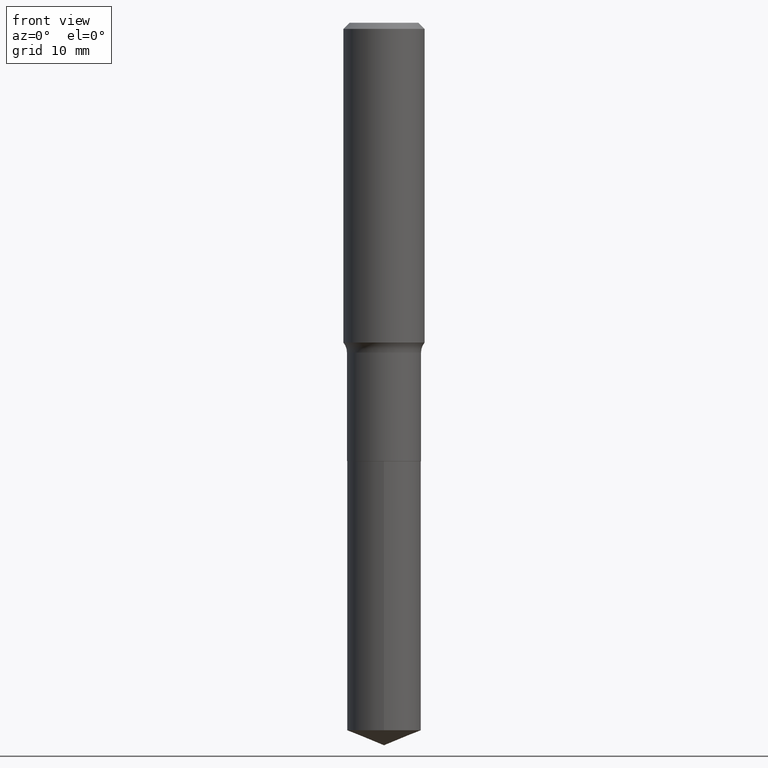
[diagram: clean part render]
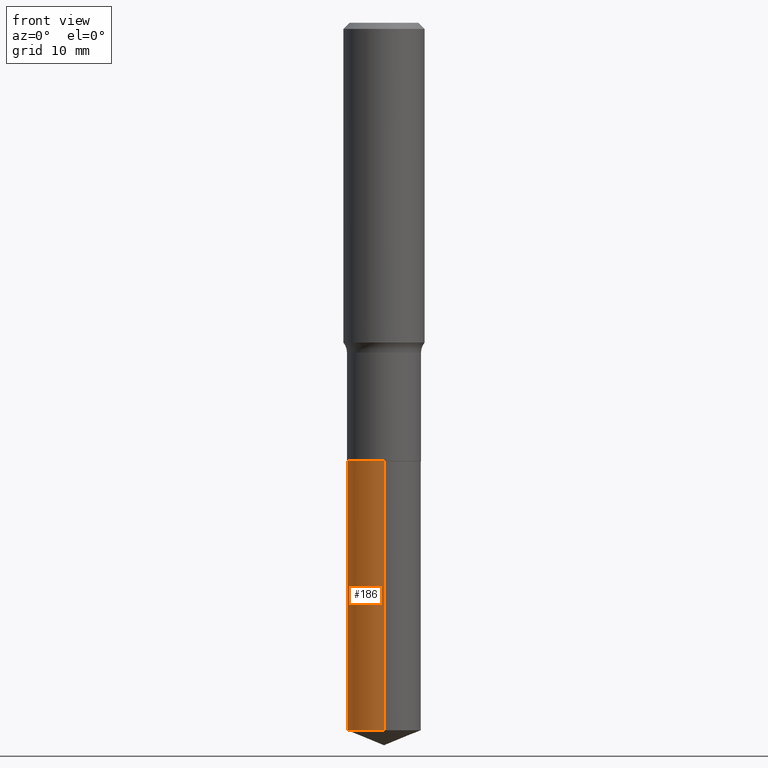
[diagram: same view with one face highlighted and labeled with its STEP entity id]
A machine part, front view. The second image highlights one B-rep face of the part: STEP entity #186.
In plain terms, the highlighted cylindrical surface (partial cylindrical patch) has radius 4.5644 mm, axis along (-0, 0, 1).
Its self-contained STEP definition (entity closure, byte-faithful):
#6 = DIRECTION ( 'NONE',  ( -2.445510554620705079E-29, 3.491421552707238058E-15, 1.000000000000000000 ) ) ;
#13 = EDGE_CURVE ( 'NONE', #434, #166, #482, .T. ) ;
#40 = EDGE_CURVE ( 'NONE', #434, #133, #105, .T. ) ;
#97 = EDGE_CURVE ( 'NONE', #133, #382, #266, .T. ) ;
#101 = CYLINDRICAL_SURFACE ( 'NONE', #358, 0.1796999999999999986 ) ;
#105 = CIRCLE ( 'NONE', #360, 0.1796999999999999986 ) ;
#131 = ORIENTED_EDGE ( 'NONE', *, *, #40, .T. ) ;
#133 = VERTEX_POINT ( 'NONE', #299 ) ;
#139 = CARTESIAN_POINT ( 'NONE',  ( 1.276845296160951695E-15, 0.1796999999999925879, -2.125900000000000567 ) ) ;
#141 = CIRCLE ( 'NONE', #478, 0.1796999999999999986 ) ;
#150 = CARTESIAN_POINT ( 'NONE',  ( 5.198822135068982087E-29, -7.422540178246643119E-15, -2.125899999999999679 ) ) ;
#166 = VERTEX_POINT ( 'NONE', #449 ) ;
#173 = FACE_OUTER_BOUND ( 'NONE', #370, .T. ) ;
#186 = ADVANCED_FACE ( 'NONE', ( #173 ), #101, .T. ) ;
#195 = DIRECTION ( 'NONE',  ( -2.445510554620705359E-29, 3.491421552707238452E-15, 1.000000000000000000 ) ) ;
#196 = EDGE_CURVE ( 'NONE', #166, #382, #141, .T. ) ;
#218 = CARTESIAN_POINT ( 'NONE',  ( -1.254838393180170060E-15, -0.1797000000000074094, -2.125899999999999235 ) ) ;
#236 = VECTOR ( 'NONE', #195, 39.37007874015748143 ) ;
#266 = LINE ( 'NONE', #218, #410 ) ;
#292 = ORIENTED_EDGE ( 'NONE', *, *, #196, .F. ) ;
#298 = ORIENTED_EDGE ( 'NONE', *, *, #13, .F. ) ;
#299 = CARTESIAN_POINT ( 'NONE',  ( -1.254838393180137914E-15, -0.1797000000000119613, -3.431296487217422087 ) ) ;
#302 = DIRECTION ( 'NONE',  ( -2.445510554620705079E-29, 3.491421552707238058E-15, 1.000000000000000000 ) ) ;
#339 = ORIENTED_EDGE ( 'NONE', *, *, #97, .T. ) ;
#342 = CARTESIAN_POINT ( 'NONE',  ( 8.391183022523980954E-29, -1.198022960854587011E-14, -3.431296487217422531 ) ) ;
#345 = CARTESIAN_POINT ( 'NONE',  ( 5.198822135068982087E-29, -7.422540178246643119E-15, -2.125899999999999679 ) ) ;
#354 = CARTESIAN_POINT ( 'NONE',  ( -1.254838393180170060E-15, -0.1797000000000074094, -2.125899999999999235 ) ) ;
#358 = AXIS2_PLACEMENT_3D ( 'NONE', #345, #302, #461 ) ;
#360 = AXIS2_PLACEMENT_3D ( 'NONE', #342, #407, #453 ) ;
#370 = EDGE_LOOP ( 'NONE', ( #298, #131, #339, #292 ) ) ;
#382 = VERTEX_POINT ( 'NONE', #354 ) ;
#407 = DIRECTION ( 'NONE',  ( -2.445510554620705079E-29, 3.491421552707238058E-15, 1.000000000000000000 ) ) ;
#410 = VECTOR ( 'NONE', #416, 39.37007874015748143 ) ;
#416 = DIRECTION ( 'NONE',  ( -2.445510554620705359E-29, 3.491421552707238452E-15, 1.000000000000000000 ) ) ;
#434 = VERTEX_POINT ( 'NONE', #455 ) ;
#449 = CARTESIAN_POINT ( 'NONE',  ( 1.276845296160984038E-15, 0.1796999999999925879, -2.125900000000000567 ) ) ;
#452 = DIRECTION ( 'NONE',  ( -6.982962677686265922E-15, -1.000000000000000000, 3.040454083098790380E-15 ) ) ;
#453 = DIRECTION ( 'NONE',  ( -6.982962677686265922E-15, -1.000000000000000000, 3.040454083098790380E-15 ) ) ;
#455 = CARTESIAN_POINT ( 'NONE',  ( 1.276845296160983446E-15, 0.1796999999999880082, -3.431296487217423419 ) ) ;
#461 = DIRECTION ( 'NONE',  ( -6.982962677686265922E-15, -1.000000000000000000, 3.040454083098790380E-15 ) ) ;
#478 = AXIS2_PLACEMENT_3D ( 'NONE', #150, #6, #452 ) ;
#482 = LINE ( 'NONE', #139, #236 ) ;